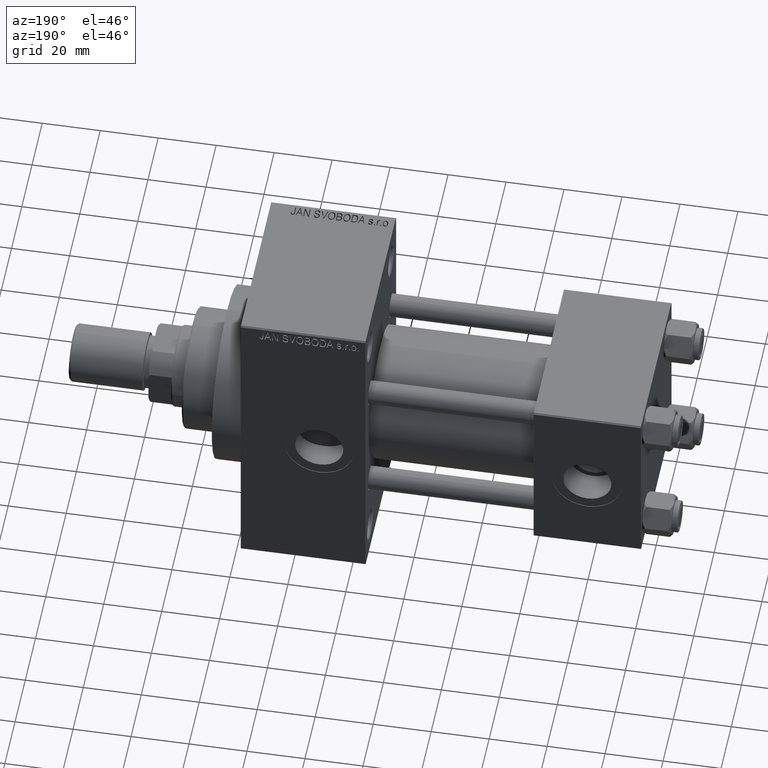
[diagram: clean part render]
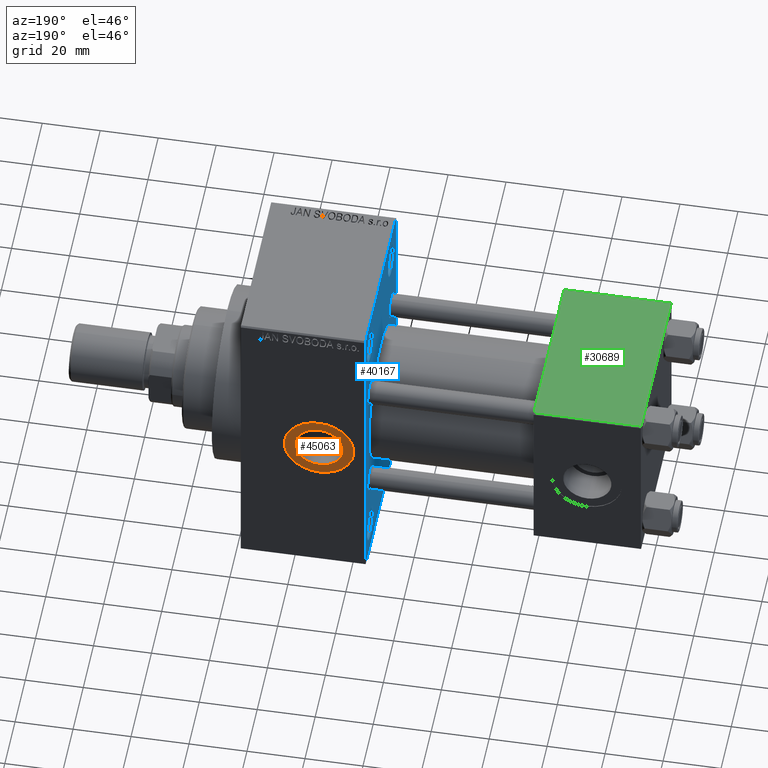
[diagram: same view with three faces highlighted in distinct colors, each labeled with its STEP entity id]
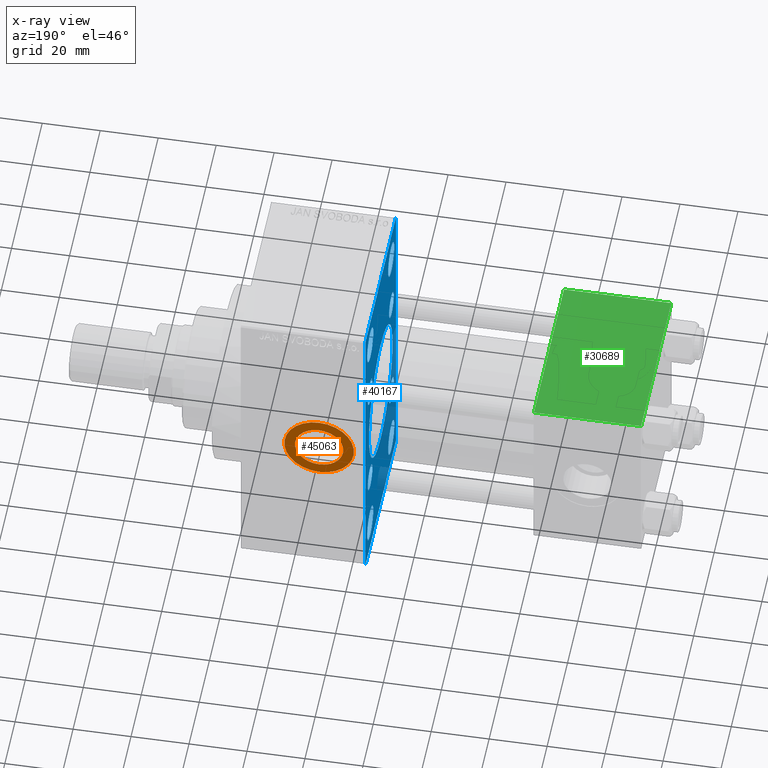
[diagram: x-ray of the same camera — body ghosted, the three highlighted faces saturated]
A machine part, auxiliary view with three faces highlighted in distinct colors.
The next image is the same camera in x-ray (body ghosted, the three faces saturated) — at least one of them is partly hidden behind the body in this view.
Their STEP definitions:

[orange] entity #45063 — the highlighted planar face has unit normal (0, 1, 0).
#1377 = AXIS2_PLACEMENT_3D ( 'NONE', #14322, #29670, #3506 ) ;
#3506 = DIRECTION ( 'NONE',  ( 0.000000000000000000, 0.000000000000000000, 1.000000000000000000 ) ) ;
#4008 = AXIS2_PLACEMENT_3D ( 'NONE', #11846, #38523, #27197 ) ;
#5478 = EDGE_CURVE ( 'NONE', #35991, #25525, #10193, .T. ) ;
#5629 = CARTESIAN_POINT ( 'NONE',  ( 111.0000000000000000, 29.79999999999999716, 0.000000000000000000 ) ) ;
#7075 = FACE_OUTER_BOUND ( 'NONE', #19670, .T. ) ;
#10193 = CIRCLE ( 'NONE', #1377, 8.329999999999998295 ) ;
#10732 = AXIS2_PLACEMENT_3D ( 'NONE', #5629, #44872, #40593 ) ;
#11846 = CARTESIAN_POINT ( 'NONE',  ( 111.0000000000000000, 29.79999999999999716, 0.000000000000000000 ) ) ;
#14322 = CARTESIAN_POINT ( 'NONE',  ( 111.0000000000000000, 29.79999999999999716, 0.000000000000000000 ) ) ;
#14898 = DIRECTION ( 'NONE',  ( 0.000000000000000000, 1.000000000000000000, 0.000000000000000000 ) ) ;
#17432 = AXIS2_PLACEMENT_3D ( 'NONE', #18687, #14898, #30243 ) ;
#18687 = CARTESIAN_POINT ( 'NONE',  ( 111.0000000000000000, 29.79999999999999716, 0.000000000000000000 ) ) ;
#19478 = EDGE_LOOP ( 'NONE', ( #33256, #32978 ) ) ;
#19670 = EDGE_LOOP ( 'NONE', ( #30778, #36952 ) ) ;
#19704 = AXIS2_PLACEMENT_3D ( 'NONE', #45528, #41756, #37976 ) ;
#21080 = VERTEX_POINT ( 'NONE', #36545 ) ;
#24493 = CIRCLE ( 'NONE', #19704, 11.99999999999998934 ) ;
#25525 = VERTEX_POINT ( 'NONE', #32788 ) ;
#26252 = CIRCLE ( 'NONE', #17432, 8.329999999999998295 ) ;
#26951 = FACE_BOUND ( 'NONE', #19478, .T. ) ;
#27197 = DIRECTION ( 'NONE',  ( 0.000000000000000000, -0.000000000000000000, 1.000000000000000000 ) ) ;
#27331 = EDGE_CURVE ( 'NONE', #21080, #28534, #29201, .T. ) ;
#28534 = VERTEX_POINT ( 'NONE', #32534 ) ;
#29201 = CIRCLE ( 'NONE', #10732, 11.99999999999998934 ) ;
#29670 = DIRECTION ( 'NONE',  ( 0.000000000000000000, 1.000000000000000000, 0.000000000000000000 ) ) ;
#30223 = PLANE ( 'NONE',  #4008 ) ;
#30243 = DIRECTION ( 'NONE',  ( 0.000000000000000000, 0.000000000000000000, 1.000000000000000000 ) ) ;
#30778 = ORIENTED_EDGE ( 'NONE', *, *, #27331, .T. ) ;
#31567 = EDGE_CURVE ( 'NONE', #28534, #21080, #24493, .T. ) ;
#32534 = CARTESIAN_POINT ( 'NONE',  ( 111.0000000000000000, 29.79999999999999716, -11.99999999999998934 ) ) ;
#32788 = CARTESIAN_POINT ( 'NONE',  ( 111.0000000000000000, 29.79999999999999716, 8.329999999999998295 ) ) ;
#32978 = ORIENTED_EDGE ( 'NONE', *, *, #5478, .F. ) ;
#33256 = ORIENTED_EDGE ( 'NONE', *, *, #35858, .F. ) ;
#35858 = EDGE_CURVE ( 'NONE', #25525, #35991, #26252, .T. ) ;
#35991 = VERTEX_POINT ( 'NONE', #38131 ) ;
#36545 = CARTESIAN_POINT ( 'NONE',  ( 111.0000000000000000, 29.79999999999999716, 11.99999999999998934 ) ) ;
#36952 = ORIENTED_EDGE ( 'NONE', *, *, #31567, .T. ) ;
#37976 = DIRECTION ( 'NONE',  ( 0.000000000000000000, 0.000000000000000000, 1.000000000000000000 ) ) ;
#38131 = CARTESIAN_POINT ( 'NONE',  ( 111.0000000000000000, 29.79999999999999716, -8.329999999999998295 ) ) ;
#38523 = DIRECTION ( 'NONE',  ( 0.000000000000000000, 1.000000000000000000, 0.000000000000000000 ) ) ;
#40593 = DIRECTION ( 'NONE',  ( 0.000000000000000000, 0.000000000000000000, 1.000000000000000000 ) ) ;
#41756 = DIRECTION ( 'NONE',  ( 0.000000000000000000, 1.000000000000000000, 0.000000000000000000 ) ) ;
#44872 = DIRECTION ( 'NONE',  ( 0.000000000000000000, 1.000000000000000000, 0.000000000000000000 ) ) ;
#45063 = ADVANCED_FACE ( 'NONE', ( #26951, #7075 ), #30223, .T. ) ;
#45528 = CARTESIAN_POINT ( 'NONE',  ( 111.0000000000000000, 29.79999999999999716, 0.000000000000000000 ) ) ;

[blue] entity #40167 — the highlighted planar face has unit normal (-1, 0, 0).
#15 = AXIS2_PLACEMENT_3D ( 'NONE', #34896, #19315, #38429 ) ;
#167 = DIRECTION ( 'NONE',  ( 1.000000000000000000, -0.000000000000000000, 0.000000000000000000 ) ) ;
#390 = FACE_BOUND ( 'NONE', #18769, .T. ) ;
#392 = EDGE_LOOP ( 'NONE', ( #34584, #47735 ) ) ;
#470 = VECTOR ( 'NONE', #24885, 1000.000000000000000 ) ;
#923 = EDGE_LOOP ( 'NONE', ( #30796, #14480 ) ) ;
#958 = AXIS2_PLACEMENT_3D ( 'NONE', #25702, #2306, #41040 ) ;
#1153 = ORIENTED_EDGE ( 'NONE', *, *, #12506, .T. ) ;
#1170 = EDGE_CURVE ( 'NONE', #8623, #15277, #33491, .T. ) ;
#1325 = EDGE_CURVE ( 'NONE', #6459, #41265, #11794, .T. ) ;
#1340 = VERTEX_POINT ( 'NONE', #6893 ) ;
#2202 = AXIS2_PLACEMENT_3D ( 'NONE', #37697, #47414, #4661 ) ;
#2294 = VERTEX_POINT ( 'NONE', #21551 ) ;
#2306 = DIRECTION ( 'NONE',  ( 1.000000000000000000, -0.000000000000000000, 0.000000000000000000 ) ) ;
#2368 = CARTESIAN_POINT ( 'NONE',  ( 95.00000000000000000, 20.50000000000000000, 43.50000000000000000 ) ) ;
#2891 = DIRECTION ( 'NONE',  ( 1.000000000000000000, -0.000000000000000000, 0.000000000000000000 ) ) ;
#3134 = EDGE_CURVE ( 'NONE', #8897, #7135, #10925, .T. ) ;
#3577 = EDGE_LOOP ( 'NONE', ( #44509, #37729 ) ) ;
#3623 = CARTESIAN_POINT ( 'NONE',  ( 95.00000000000000000, 41.99999999999998579, -41.99999999999998579 ) ) ;
#3991 = CARTESIAN_POINT ( 'NONE',  ( 95.00000000000000000, 20.84999999999999787, 20.85000000000000142 ) ) ;
#4114 = DIRECTION ( 'NONE',  ( 1.000000000000000000, 0.000000000000000000, 0.000000000000000000 ) ) ;
#4661 = DIRECTION ( 'NONE',  ( -0.000000000000000000, 0.000000000000000000, 1.000000000000000000 ) ) ;
#4706 = CARTESIAN_POINT ( 'NONE',  ( 95.00000000000000000, 20.50000000000000000, 49.49999999999989342 ) ) ;
#4847 = EDGE_CURVE ( 'NONE', #1340, #36847, #19064, .T. ) ;
#4974 = EDGE_CURVE ( 'NONE', #39754, #22805, #18271, .T. ) ;
#5008 = AXIS2_PLACEMENT_3D ( 'NONE', #29737, #5848, #33515 ) ;
#5396 = DIRECTION ( 'NONE',  ( 1.000000000000000000, -0.000000000000000000, 0.000000000000000000 ) ) ;
#5620 = VERTEX_POINT ( 'NONE', #9673 ) ;
#5801 = CARTESIAN_POINT ( 'NONE',  ( 95.00000000000000000, -20.50000000000000000, 49.49999999999989342 ) ) ;
#5848 = DIRECTION ( 'NONE',  ( 1.000000000000000000, -0.000000000000000000, 0.000000000000000000 ) ) ;
#6170 = DIRECTION ( 'NONE',  ( 0.000000000000000000, 0.000000000000000000, 1.000000000000000000 ) ) ;
#6333 = CARTESIAN_POINT ( 'NONE',  ( 95.00000000000000000, 20.84999999999999787, -16.34999999999999432 ) ) ;
#6459 = VERTEX_POINT ( 'NONE', #33647 ) ;
#6808 = EDGE_LOOP ( 'NONE', ( #18325, #27693 ) ) ;
#6893 = CARTESIAN_POINT ( 'NONE',  ( 95.00000000000000000, -2.602085213965210642E-15, 23.00000000000000000 ) ) ;
#6997 = FACE_BOUND ( 'NONE', #6808, .T. ) ;
#7135 = VERTEX_POINT ( 'NONE', #17331 ) ;
#7527 = ORIENTED_EDGE ( 'NONE', *, *, #44150, .T. ) ;
#7639 = LINE ( 'NONE', #3623, #29070 ) ;
#7784 = LINE ( 'NONE', #37984, #8477 ) ;
#7981 = ORIENTED_EDGE ( 'NONE', *, *, #24503, .T. ) ;
#8282 = CARTESIAN_POINT ( 'NONE',  ( 95.00000000000000000, 42.00000000000082423, 41.99999999999849365 ) ) ;
#8353 = CARTESIAN_POINT ( 'NONE',  ( 95.00000000000000000, 20.84999999999999787, -25.35000000000000853 ) ) ;
#8477 = VECTOR ( 'NONE', #15599, 1000.000000000000114 ) ;
#8623 = VERTEX_POINT ( 'NONE', #32386 ) ;
#8897 = VERTEX_POINT ( 'NONE', #15022 ) ;
#8974 = VECTOR ( 'NONE', #47077, 1000.000000000000000 ) ;
#9081 = CARTESIAN_POINT ( 'NONE',  ( 95.00000000000000000, -20.84999999999999076, 16.34999999999999787 ) ) ;
#9087 = EDGE_CURVE ( 'NONE', #45875, #46337, #20527, .T. ) ;
#9659 = DIRECTION ( 'NONE',  ( 1.000000000000000000, -0.000000000000000000, 0.000000000000000000 ) ) ;
#9673 = CARTESIAN_POINT ( 'NONE',  ( 95.00000000000000000, 29.50000000000002132, 54.49999999999999289 ) ) ;
#9692 = CIRCLE ( 'NONE', #48246, 23.00000000000000000 ) ;
#9744 = CARTESIAN_POINT ( 'NONE',  ( 95.00000000000000000, -20.50000000000000000, 37.50000000000009948 ) ) ;
#10011 = LINE ( 'NONE', #43764, #470 ) ;
#10044 = AXIS2_PLACEMENT_3D ( 'NONE', #18739, #49171, #14955 ) ;
#10149 = DIRECTION ( 'NONE',  ( 1.000000000000000000, -0.000000000000000000, 0.000000000000000000 ) ) ;
#10305 = EDGE_LOOP ( 'NONE', ( #41727, #18107, #19781, #23851, #23414, #1153, #24402, #39835 ) ) ;
#10925 = CIRCLE ( 'NONE', #18195, 5.999999999999894307 ) ;
#11523 = CARTESIAN_POINT ( 'NONE',  ( 95.00000000000000000, 20.50000000000000000, -43.50000000000000000 ) ) ;
#11722 = CARTESIAN_POINT ( 'NONE',  ( 95.00000000000000000, -20.50000000000000000, -43.50000000000000000 ) ) ;
#11794 = CIRCLE ( 'NONE', #10044, 4.500000000000007105 ) ;
#12235 = DIRECTION ( 'NONE',  ( 0.000000000000000000, 0.000000000000000000, -1.000000000000000000 ) ) ;
#12368 = EDGE_LOOP ( 'NONE', ( #31397, #42987 ) ) ;
#12506 = EDGE_CURVE ( 'NONE', #5620, #45875, #46523, .T. ) ;
#12621 = EDGE_CURVE ( 'NONE', #36363, #21879, #43741, .T. ) ;
#12726 = VECTOR ( 'NONE', #32403, 1000.000000000000000 ) ;
#13567 = CARTESIAN_POINT ( 'NONE',  ( 95.00000000000000000, -20.84999999999999076, 20.85000000000000497 ) ) ;
#13762 = CIRCLE ( 'NONE', #41907, 4.500000000000007105 ) ;
#14064 = DIRECTION ( 'NONE',  ( 0.000000000000000000, 0.000000000000000000, 1.000000000000000000 ) ) ;
#14480 = ORIENTED_EDGE ( 'NONE', *, *, #17761, .T. ) ;
#14556 = FACE_BOUND ( 'NONE', #45331, .T. ) ;
#14733 = DIRECTION ( 'NONE',  ( 0.000000000000000000, 0.000000000000000000, -1.000000000000000000 ) ) ;
#14955 = DIRECTION ( 'NONE',  ( 0.000000000000000000, 0.000000000000000000, 1.000000000000000000 ) ) ;
#15022 = CARTESIAN_POINT ( 'NONE',  ( 95.00000000000000000, 20.50000000000000000, -49.49999999999989342 ) ) ;
#15277 = VERTEX_POINT ( 'NONE', #15684 ) ;
#15599 = DIRECTION ( 'NONE',  ( -0.000000000000000000, 0.7071067811865451302, 0.7071067811865500152 ) ) ;
#15684 = CARTESIAN_POINT ( 'NONE',  ( 95.00000000000000000, -20.50000000000000000, -49.49999999999989342 ) ) ;
#16019 = DIRECTION ( 'NONE',  ( 0.000000000000000000, 0.000000000000000000, 1.000000000000000000 ) ) ;
#16670 = DIRECTION ( 'NONE',  ( 1.000000000000000000, -0.000000000000000000, 0.000000000000000000 ) ) ;
#16814 = CARTESIAN_POINT ( 'NONE',  ( 95.00000000000000000, -29.49999999999997513, 54.50000000000000000 ) ) ;
#17084 = CARTESIAN_POINT ( 'NONE',  ( 95.00000000000000000, -42.00000000000051159, -41.99999999999905498 ) ) ;
#17195 = ORIENTED_EDGE ( 'NONE', *, *, #4974, .T. ) ;
#17331 = CARTESIAN_POINT ( 'NONE',  ( 95.00000000000000000, 20.50000000000000000, -37.50000000000009948 ) ) ;
#17347 = EDGE_CURVE ( 'NONE', #28110, #33005, #21711, .T. ) ;
#17554 = VECTOR ( 'NONE', #26414, 1000.000000000000000 ) ;
#17761 = EDGE_CURVE ( 'NONE', #36847, #1340, #9692, .T. ) ;
#18107 = ORIENTED_EDGE ( 'NONE', *, *, #12621, .T. ) ;
#18195 = AXIS2_PLACEMENT_3D ( 'NONE', #11523, #49274, #33933 ) ;
#18271 = CIRCLE ( 'NONE', #47961, 4.500000000000007105 ) ;
#18325 = ORIENTED_EDGE ( 'NONE', *, *, #23374, .T. ) ;
#18739 = CARTESIAN_POINT ( 'NONE',  ( 95.00000000000000000, -20.84999999999999076, -20.85000000000000497 ) ) ;
#18769 = EDGE_LOOP ( 'NONE', ( #47052, #17195 ) ) ;
#19001 = CARTESIAN_POINT ( 'NONE',  ( 95.00000000000000000, 20.50000000000000000, 37.50000000000009948 ) ) ;
#19004 = EDGE_CURVE ( 'NONE', #41265, #6459, #13762, .T. ) ;
#19064 = CIRCLE ( 'NONE', #31118, 23.00000000000000000 ) ;
#19315 = DIRECTION ( 'NONE',  ( 1.000000000000000000, -0.000000000000000000, 0.000000000000000000 ) ) ;
#19476 = DIRECTION ( 'NONE',  ( 0.000000000000000000, 0.000000000000000000, -1.000000000000000000 ) ) ;
#19664 = VERTEX_POINT ( 'NONE', #32130 ) ;
#19781 = ORIENTED_EDGE ( 'NONE', *, *, #21214, .F. ) ;
#19873 = VERTEX_POINT ( 'NONE', #37149 ) ;
#20200 = EDGE_CURVE ( 'NONE', #22805, #39754, #25834, .T. ) ;
#20205 = EDGE_CURVE ( 'NONE', #46337, #2294, #7639, .T. ) ;
#20527 = LINE ( 'NONE', #39886, #23228 ) ;
#21012 = DIRECTION ( 'NONE',  ( 0.000000000000000000, 0.000000000000000000, 1.000000000000000000 ) ) ;
#21016 = DIRECTION ( 'NONE',  ( 1.000000000000000000, -0.000000000000000000, 0.000000000000000000 ) ) ;
#21214 = EDGE_CURVE ( 'NONE', #19873, #21879, #42566, .T. ) ;
#21551 = CARTESIAN_POINT ( 'NONE',  ( 95.00000000000000000, 29.49999999999999645, -54.49999999999999289 ) ) ;
#21711 = CIRCLE ( 'NONE', #15, 5.999999999999894307 ) ;
#21879 = VERTEX_POINT ( 'NONE', #24989 ) ;
#22209 = CARTESIAN_POINT ( 'NONE',  ( 95.00000000000000000, 29.99999999999999645, 53.99999999999999289 ) ) ;
#22367 = FACE_BOUND ( 'NONE', #392, .T. ) ;
#22805 = VERTEX_POINT ( 'NONE', #43530 ) ;
#23123 = EDGE_LOOP ( 'NONE', ( #7527, #46314 ) ) ;
#23228 = VECTOR ( 'NONE', #12235, 1000.000000000000000 ) ;
#23293 = FACE_BOUND ( 'NONE', #3577, .T. ) ;
#23374 = EDGE_CURVE ( 'NONE', #47190, #46476, #30646, .T. ) ;
#23395 = EDGE_CURVE ( 'NONE', #33005, #28110, #39480, .T. ) ;
#23414 = ORIENTED_EDGE ( 'NONE', *, *, #29489, .F. ) ;
#23661 = EDGE_CURVE ( 'NONE', #28591, #31209, #32294, .T. ) ;
#23742 = CARTESIAN_POINT ( 'NONE',  ( 95.00000000000000000, -2.602085213965210642E-15, 0.000000000000000000 ) ) ;
#23851 = ORIENTED_EDGE ( 'NONE', *, *, #32336, .T. ) ;
#23857 = CARTESIAN_POINT ( 'NONE',  ( 95.00000000000000000, -20.84999999999999076, -25.35000000000001208 ) ) ;
#23969 = LINE ( 'NONE', #39303, #31717 ) ;
#24076 = DIRECTION ( 'NONE',  ( 0.000000000000000000, 0.000000000000000000, 1.000000000000000000 ) ) ;
#24402 = ORIENTED_EDGE ( 'NONE', *, *, #9087, .T. ) ;
#24503 = EDGE_CURVE ( 'NONE', #7135, #8897, #47596, .T. ) ;
#24569 = CIRCLE ( 'NONE', #26187, 5.999999999999894307 ) ;
#24885 = DIRECTION ( 'NONE',  ( 0.000000000000000000, -1.000000000000000000, -1.156482317317871478E-16 ) ) ;
#24989 = CARTESIAN_POINT ( 'NONE',  ( 95.00000000000000000, -30.00000000000000000, -53.99999999999998579 ) ) ;
#25019 = DIRECTION ( 'NONE',  ( 0.000000000000000000, 0.000000000000000000, 1.000000000000000000 ) ) ;
#25263 = CARTESIAN_POINT ( 'NONE',  ( 95.00000000000000000, -20.50000000000000000, -43.50000000000000000 ) ) ;
#25702 = CARTESIAN_POINT ( 'NONE',  ( 95.00000000000000000, 20.84999999999999787, -20.85000000000000142 ) ) ;
#25834 = CIRCLE ( 'NONE', #32254, 4.500000000000007105 ) ;
#26127 = FACE_OUTER_BOUND ( 'NONE', #10305, .T. ) ;
#26187 = AXIS2_PLACEMENT_3D ( 'NONE', #37356, #2891, #6170 ) ;
#26414 = DIRECTION ( 'NONE',  ( 0.000000000000000000, 0.7071067811865279218, -0.7071067811865671127 ) ) ;
#26746 = EDGE_LOOP ( 'NONE', ( #31586, #32631 ) ) ;
#26977 = AXIS2_PLACEMENT_3D ( 'NONE', #25263, #5396, #25019 ) ;
#27693 = ORIENTED_EDGE ( 'NONE', *, *, #32861, .T. ) ;
#27857 = AXIS2_PLACEMENT_3D ( 'NONE', #11722, #167, #16019 ) ;
#28110 = VERTEX_POINT ( 'NONE', #4706 ) ;
#28591 = VERTEX_POINT ( 'NONE', #8353 ) ;
#29070 = VECTOR ( 'NONE', #42129, 1000.000000000000114 ) ;
#29489 = EDGE_CURVE ( 'NONE', #5620, #34134, #23969, .T. ) ;
#29737 = CARTESIAN_POINT ( 'NONE',  ( 95.00000000000000000, 20.50000000000000000, -43.50000000000000000 ) ) ;
#29907 = FACE_BOUND ( 'NONE', #12368, .T. ) ;
#30646 = CIRCLE ( 'NONE', #32250, 5.999999999999894307 ) ;
#30651 = VERTEX_POINT ( 'NONE', #48296 ) ;
#30796 = ORIENTED_EDGE ( 'NONE', *, *, #4847, .T. ) ;
#31118 = AXIS2_PLACEMENT_3D ( 'NONE', #23742, #4114, #19476 ) ;
#31125 = AXIS2_PLACEMENT_3D ( 'NONE', #39307, #16670, #43095 ) ;
#31201 = CARTESIAN_POINT ( 'NONE',  ( 95.00000000000000000, -29.50000000000000355, -54.50000000000000000 ) ) ;
#31209 = VERTEX_POINT ( 'NONE', #6333 ) ;
#31397 = ORIENTED_EDGE ( 'NONE', *, *, #17347, .T. ) ;
#31586 = ORIENTED_EDGE ( 'NONE', *, *, #1170, .T. ) ;
#31589 = CARTESIAN_POINT ( 'NONE',  ( 95.00000000000000000, 2.146024240737012665E-16, -23.00000000000000000 ) ) ;
#31620 = CARTESIAN_POINT ( 'NONE',  ( 95.00000000000000000, 20.84999999999999787, -20.85000000000000142 ) ) ;
#31717 = VECTOR ( 'NONE', #47097, 1000.000000000000000 ) ;
#32130 = CARTESIAN_POINT ( 'NONE',  ( 95.00000000000000000, 20.84999999999999787, 25.35000000000000853 ) ) ;
#32250 = AXIS2_PLACEMENT_3D ( 'NONE', #37082, #10149, #21012 ) ;
#32254 = AXIS2_PLACEMENT_3D ( 'NONE', #33316, #21016, #43904 ) ;
#32294 = CIRCLE ( 'NONE', #958, 4.500000000000007105 ) ;
#32336 = EDGE_CURVE ( 'NONE', #19873, #34134, #7784, .T. ) ;
#32386 = CARTESIAN_POINT ( 'NONE',  ( 95.00000000000000000, -20.50000000000000000, -37.50000000000009948 ) ) ;
#32403 = DIRECTION ( 'NONE',  ( 0.000000000000000000, -0.7071067811865352493, 0.7071067811865597852 ) ) ;
#32631 = ORIENTED_EDGE ( 'NONE', *, *, #36988, .T. ) ;
#32861 = EDGE_CURVE ( 'NONE', #46476, #47190, #24569, .T. ) ;
#33005 = VERTEX_POINT ( 'NONE', #19001 ) ;
#33316 = CARTESIAN_POINT ( 'NONE',  ( 95.00000000000000000, -20.84999999999999076, 20.85000000000000497 ) ) ;
#33491 = CIRCLE ( 'NONE', #27857, 5.999999999999894307 ) ;
#33515 = DIRECTION ( 'NONE',  ( 0.000000000000000000, 0.000000000000000000, 1.000000000000000000 ) ) ;
#33543 = CARTESIAN_POINT ( 'NONE',  ( 95.00000000000000000, -20.84999999999999076, -20.85000000000000497 ) ) ;
#33647 = CARTESIAN_POINT ( 'NONE',  ( 95.00000000000000000, -20.84999999999999076, -16.34999999999999787 ) ) ;
#33672 = FACE_BOUND ( 'NONE', #26746, .T. ) ;
#33933 = DIRECTION ( 'NONE',  ( 0.000000000000000000, 0.000000000000000000, 1.000000000000000000 ) ) ;
#34049 = EDGE_CURVE ( 'NONE', #30651, #19664, #39083, .T. ) ;
#34134 = VERTEX_POINT ( 'NONE', #16814 ) ;
#34269 = AXIS2_PLACEMENT_3D ( 'NONE', #3991, #49286, #45512 ) ;
#34326 = CIRCLE ( 'NONE', #31125, 4.500000000000007105 ) ;
#34584 = ORIENTED_EDGE ( 'NONE', *, *, #1325, .T. ) ;
#34896 = CARTESIAN_POINT ( 'NONE',  ( 95.00000000000000000, 20.50000000000000000, 43.50000000000000000 ) ) ;
#35091 = DIRECTION ( 'NONE',  ( 1.000000000000000000, 0.000000000000000000, 0.000000000000000000 ) ) ;
#35295 = CIRCLE ( 'NONE', #48141, 4.500000000000007105 ) ;
#36363 = VERTEX_POINT ( 'NONE', #31201 ) ;
#36424 = EDGE_CURVE ( 'NONE', #2294, #36363, #10011, .T. ) ;
#36847 = VERTEX_POINT ( 'NONE', #31589 ) ;
#36988 = EDGE_CURVE ( 'NONE', #15277, #8623, #48653, .T. ) ;
#37058 = DIRECTION ( 'NONE',  ( 1.000000000000000000, -0.000000000000000000, 0.000000000000000000 ) ) ;
#37082 = CARTESIAN_POINT ( 'NONE',  ( 95.00000000000000000, -20.50000000000000000, 43.50000000000000000 ) ) ;
#37149 = CARTESIAN_POINT ( 'NONE',  ( 95.00000000000000000, -30.00000000000000000, 53.99999999999997158 ) ) ;
#37356 = CARTESIAN_POINT ( 'NONE',  ( 95.00000000000000000, -20.50000000000000000, 43.50000000000000000 ) ) ;
#37697 = CARTESIAN_POINT ( 'NONE',  ( 95.00000000000000000, 0.000000000000000000, 0.000000000000000000 ) ) ;
#37729 = ORIENTED_EDGE ( 'NONE', *, *, #34049, .T. ) ;
#37984 = CARTESIAN_POINT ( 'NONE',  ( 95.00000000000000000, -42.00000000000008527, 41.99999999999979394 ) ) ;
#38429 = DIRECTION ( 'NONE',  ( 0.000000000000000000, 0.000000000000000000, 1.000000000000000000 ) ) ;
#38624 = FACE_BOUND ( 'NONE', #23123, .T. ) ;
#39083 = CIRCLE ( 'NONE', #34269, 4.500000000000007105 ) ;
#39303 = CARTESIAN_POINT ( 'NONE',  ( 95.00000000000000000, 29.99999999999999645, 54.49999999999999289 ) ) ;
#39307 = CARTESIAN_POINT ( 'NONE',  ( 95.00000000000000000, 20.84999999999999787, 20.85000000000000142 ) ) ;
#39480 = CIRCLE ( 'NONE', #42730, 5.999999999999894307 ) ;
#39622 = EDGE_CURVE ( 'NONE', #19664, #30651, #34326, .T. ) ;
#39731 = ORIENTED_EDGE ( 'NONE', *, *, #3134, .T. ) ;
#39754 = VERTEX_POINT ( 'NONE', #9081 ) ;
#39835 = ORIENTED_EDGE ( 'NONE', *, *, #20205, .T. ) ;
#39886 = CARTESIAN_POINT ( 'NONE',  ( 95.00000000000000000, 29.99999999999999645, 54.49999999999999289 ) ) ;
#40167 = ADVANCED_FACE ( 'NONE', ( #6997, #33672, #14556, #29907, #390, #23293, #38624, #22367, #45252, #26127 ), #41476, .T. ) ;
#40833 = DIRECTION ( 'NONE',  ( 0.000000000000000000, 0.000000000000000000, 1.000000000000000000 ) ) ;
#40857 = DIRECTION ( 'NONE',  ( 0.000000000000000000, 0.000000000000000000, 1.000000000000000000 ) ) ;
#41040 = DIRECTION ( 'NONE',  ( 0.000000000000000000, 0.000000000000000000, 1.000000000000000000 ) ) ;
#41265 = VERTEX_POINT ( 'NONE', #23857 ) ;
#41476 = PLANE ( 'NONE',  #2202 ) ;
#41727 = ORIENTED_EDGE ( 'NONE', *, *, #36424, .T. ) ;
#41907 = AXIS2_PLACEMENT_3D ( 'NONE', #33543, #37058, #40833 ) ;
#42129 = DIRECTION ( 'NONE',  ( -0.000000000000000000, -0.7071067811865474617, -0.7071067811865474617 ) ) ;
#42566 = LINE ( 'NONE', #43067, #8974 ) ;
#42648 = CARTESIAN_POINT ( 'NONE',  ( 95.00000000000000000, -2.602085213965210642E-15, 0.000000000000000000 ) ) ;
#42730 = AXIS2_PLACEMENT_3D ( 'NONE', #2368, #9659, #40857 ) ;
#42987 = ORIENTED_EDGE ( 'NONE', *, *, #23395, .T. ) ;
#43067 = CARTESIAN_POINT ( 'NONE',  ( 95.00000000000000000, -30.00000000000000000, 54.50000000000000000 ) ) ;
#43095 = DIRECTION ( 'NONE',  ( 0.000000000000000000, 0.000000000000000000, 1.000000000000000000 ) ) ;
#43530 = CARTESIAN_POINT ( 'NONE',  ( 95.00000000000000000, -20.84999999999999076, 25.35000000000001208 ) ) ;
#43741 = LINE ( 'NONE', #17084, #12726 ) ;
#43764 = CARTESIAN_POINT ( 'NONE',  ( 95.00000000000000000, 29.99999999999999645, -54.49999999999999289 ) ) ;
#43904 = DIRECTION ( 'NONE',  ( 0.000000000000000000, 0.000000000000000000, 1.000000000000000000 ) ) ;
#44150 = EDGE_CURVE ( 'NONE', #31209, #28591, #35295, .T. ) ;
#44509 = ORIENTED_EDGE ( 'NONE', *, *, #39622, .T. ) ;
#45252 = FACE_BOUND ( 'NONE', #923, .T. ) ;
#45331 = EDGE_LOOP ( 'NONE', ( #7981, #39731 ) ) ;
#45512 = DIRECTION ( 'NONE',  ( 0.000000000000000000, 0.000000000000000000, 1.000000000000000000 ) ) ;
#45875 = VERTEX_POINT ( 'NONE', #22209 ) ;
#46314 = ORIENTED_EDGE ( 'NONE', *, *, #23661, .T. ) ;
#46337 = VERTEX_POINT ( 'NONE', #49303 ) ;
#46476 = VERTEX_POINT ( 'NONE', #9744 ) ;
#46523 = LINE ( 'NONE', #8282, #17554 ) ;
#47052 = ORIENTED_EDGE ( 'NONE', *, *, #20200, .T. ) ;
#47077 = DIRECTION ( 'NONE',  ( 0.000000000000000000, 0.000000000000000000, -1.000000000000000000 ) ) ;
#47097 = DIRECTION ( 'NONE',  ( 0.000000000000000000, -1.000000000000000000, 1.156482317317871478E-16 ) ) ;
#47190 = VERTEX_POINT ( 'NONE', #5801 ) ;
#47414 = DIRECTION ( 'NONE',  ( -1.000000000000000000, 0.000000000000000000, -0.000000000000000000 ) ) ;
#47596 = CIRCLE ( 'NONE', #5008, 5.999999999999894307 ) ;
#47699 = DIRECTION ( 'NONE',  ( 1.000000000000000000, -0.000000000000000000, 0.000000000000000000 ) ) ;
#47735 = ORIENTED_EDGE ( 'NONE', *, *, #19004, .T. ) ;
#47961 = AXIS2_PLACEMENT_3D ( 'NONE', #13567, #48540, #14064 ) ;
#48141 = AXIS2_PLACEMENT_3D ( 'NONE', #31620, #47699, #24076 ) ;
#48246 = AXIS2_PLACEMENT_3D ( 'NONE', #42648, #35091, #14733 ) ;
#48296 = CARTESIAN_POINT ( 'NONE',  ( 95.00000000000000000, 20.84999999999999787, 16.34999999999999432 ) ) ;
#48540 = DIRECTION ( 'NONE',  ( 1.000000000000000000, -0.000000000000000000, 0.000000000000000000 ) ) ;
#48653 = CIRCLE ( 'NONE', #26977, 5.999999999999894307 ) ;
#49171 = DIRECTION ( 'NONE',  ( 1.000000000000000000, -0.000000000000000000, 0.000000000000000000 ) ) ;
#49274 = DIRECTION ( 'NONE',  ( 1.000000000000000000, -0.000000000000000000, 0.000000000000000000 ) ) ;
#49286 = DIRECTION ( 'NONE',  ( 1.000000000000000000, -0.000000000000000000, 0.000000000000000000 ) ) ;
#49303 = CARTESIAN_POINT ( 'NONE',  ( 95.00000000000000000, 29.99999999999999645, -53.99999999999999289 ) ) ;

[green] entity #30689 — the highlighted planar face has unit normal (0, 0, -1).
#2015 = DIRECTION ( 'NONE',  ( 1.000000000000000000, 0.000000000000000000, 0.000000000000000000 ) ) ;
#2196 = VERTEX_POINT ( 'NONE', #35845 ) ;
#2897 = VECTOR ( 'NONE', #23985, 1000.000000000000000 ) ;
#4012 = CARTESIAN_POINT ( 'NONE',  ( 0.000000000000000000, 29.49999999999999289, 30.00000000000000000 ) ) ;
#4608 = VERTEX_POINT ( 'NONE', #24770 ) ;
#6302 = EDGE_CURVE ( 'NONE', #4608, #27478, #21649, .T. ) ;
#8628 = CARTESIAN_POINT ( 'NONE',  ( 0.000000000000000000, 29.99999999999999289, 30.00000000000000000 ) ) ;
#11361 = ORIENTED_EDGE ( 'NONE', *, *, #21386, .T. ) ;
#14256 = CARTESIAN_POINT ( 'NONE',  ( 0.000000000000000000, -29.49999999999998579, 29.99999999999999289 ) ) ;
#17124 = ORIENTED_EDGE ( 'NONE', *, *, #35179, .F. ) ;
#19048 = ORIENTED_EDGE ( 'NONE', *, *, #37370, .T. ) ;
#19368 = DIRECTION ( 'NONE',  ( -1.000000000000000000, 0.000000000000000000, 0.000000000000000000 ) ) ;
#21386 = EDGE_CURVE ( 'NONE', #23943, #2196, #32708, .T. ) ;
#21649 = LINE ( 'NONE', #4012, #33555 ) ;
#23943 = VERTEX_POINT ( 'NONE', #14256 ) ;
#23985 = DIRECTION ( 'NONE',  ( 0.000000000000000000, -1.000000000000000000, -1.156482317317871725E-16 ) ) ;
#24770 = CARTESIAN_POINT ( 'NONE',  ( 37.00000000000000000, 29.49999999999999289, 30.00000000000000000 ) ) ;
#27478 = VERTEX_POINT ( 'NONE', #49389 ) ;
#27734 = AXIS2_PLACEMENT_3D ( 'NONE', #45956, #38150, #49232 ) ;
#28968 = EDGE_LOOP ( 'NONE', ( #19048, #11361, #17124, #42490 ) ) ;
#29190 = CARTESIAN_POINT ( 'NONE',  ( 37.00000000000000000, -29.50000000000000000, 29.99999999999999289 ) ) ;
#30689 = ADVANCED_FACE ( 'NONE', ( #37650 ), #44284, .F. ) ;
#31608 = CARTESIAN_POINT ( 'NONE',  ( 37.00000000000000000, 29.99999999999999289, 30.00000000000000000 ) ) ;
#32088 = LINE ( 'NONE', #31608, #46334 ) ;
#32708 = LINE ( 'NONE', #29190, #34720 ) ;
#33555 = VECTOR ( 'NONE', #19368, 1000.000000000000000 ) ;
#34720 = VECTOR ( 'NONE', #2015, 1000.000000000000000 ) ;
#35179 = EDGE_CURVE ( 'NONE', #4608, #2196, #32088, .T. ) ;
#35845 = CARTESIAN_POINT ( 'NONE',  ( 37.00000000000000000, -29.49999999999998579, 29.99999999999999289 ) ) ;
#37370 = EDGE_CURVE ( 'NONE', #27478, #23943, #43108, .T. ) ;
#37650 = FACE_OUTER_BOUND ( 'NONE', #28968, .T. ) ;
#38150 = DIRECTION ( 'NONE',  ( 0.000000000000000000, 1.156482317317871725E-16, -1.000000000000000000 ) ) ;
#39151 = DIRECTION ( 'NONE',  ( 0.000000000000000000, -1.000000000000000000, -1.156482317317871725E-16 ) ) ;
#42490 = ORIENTED_EDGE ( 'NONE', *, *, #6302, .T. ) ;
#43108 = LINE ( 'NONE', #8628, #2897 ) ;
#44284 = PLANE ( 'NONE',  #27734 ) ;
#45956 = CARTESIAN_POINT ( 'NONE',  ( 37.00000000000000000, 29.99999999999999289, 30.00000000000000000 ) ) ;
#46334 = VECTOR ( 'NONE', #39151, 1000.000000000000000 ) ;
#49232 = DIRECTION ( 'NONE',  ( 0.000000000000000000, 1.000000000000000000, 1.156482317317871725E-16 ) ) ;
#49389 = CARTESIAN_POINT ( 'NONE',  ( 0.000000000000000000, 29.49999999999999289, 30.00000000000000000 ) ) ;